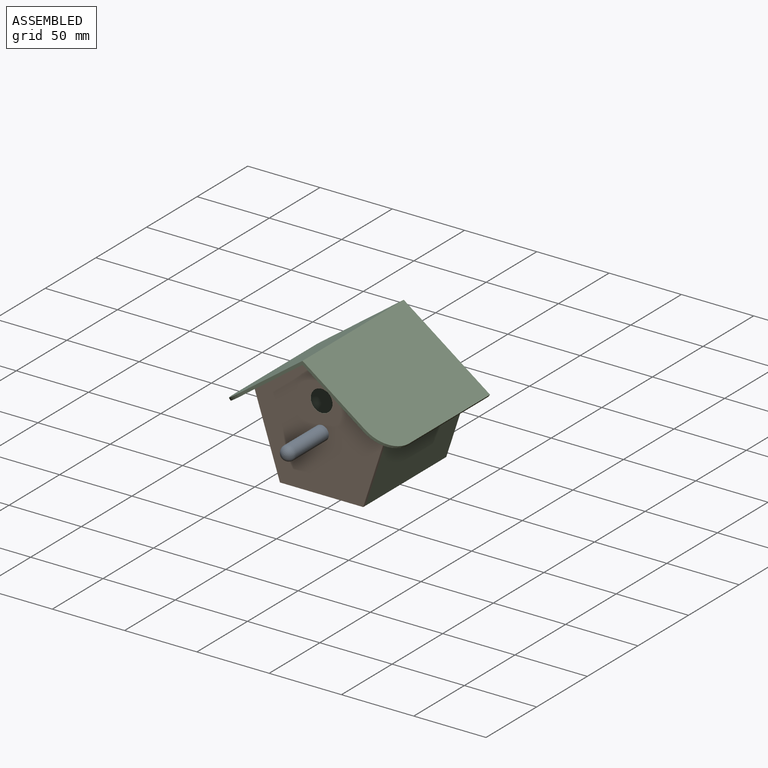
[diagram: assembled view]
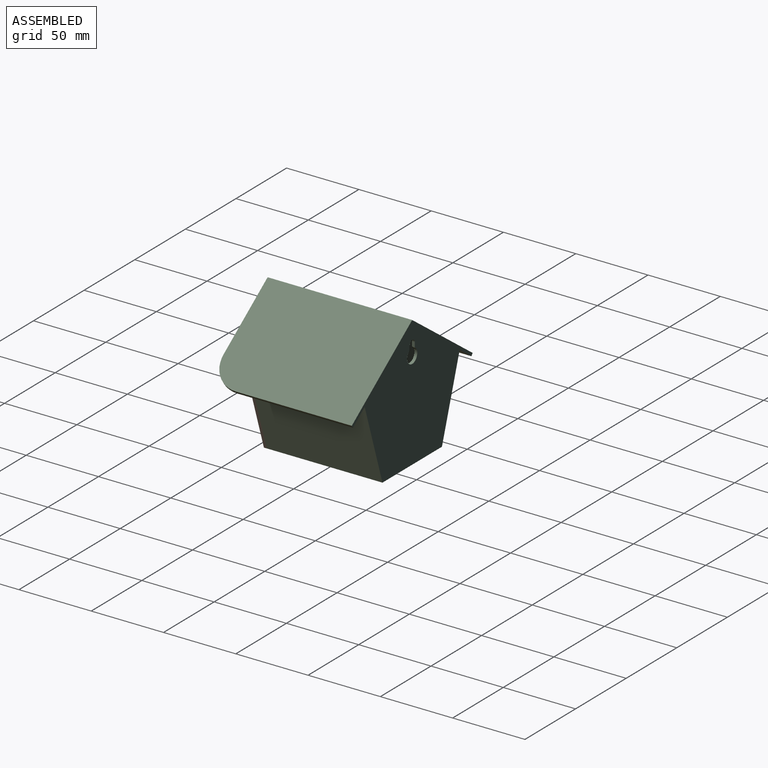
[diagram: assembled view, second angle]
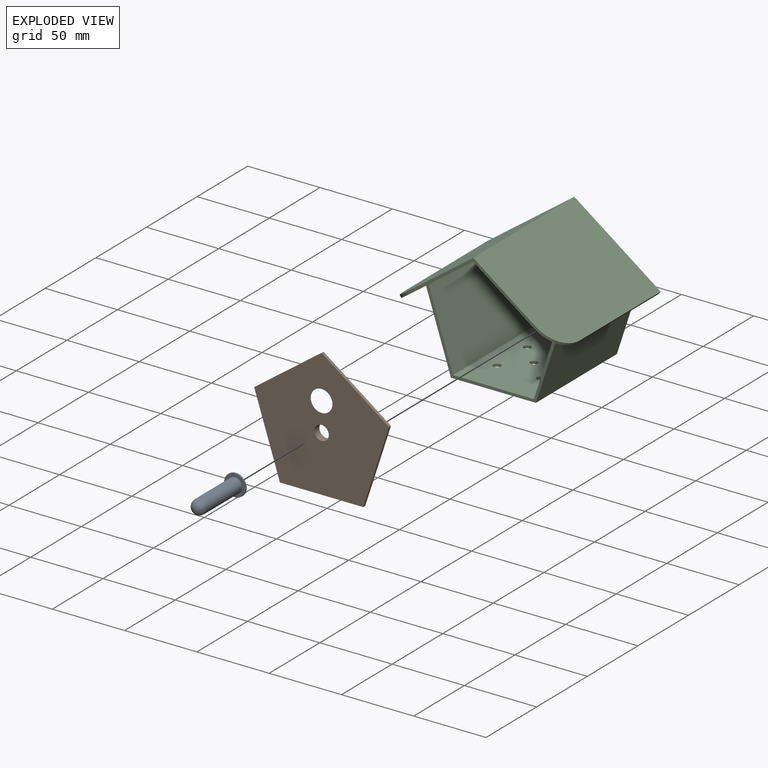
[diagram: exploded view]
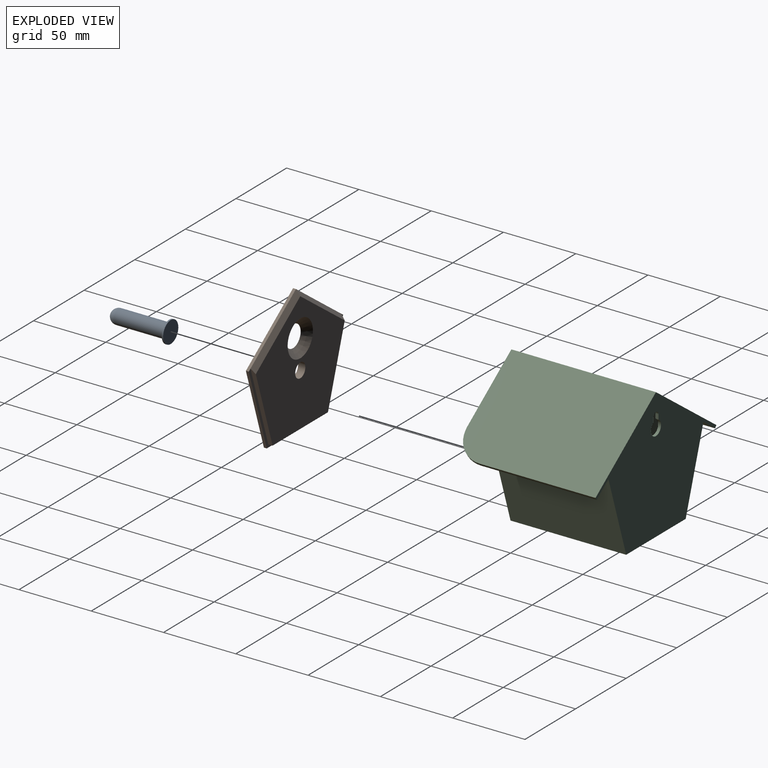
[diagram: exploded view, second angle]
ASSEMBLY  parts=3 mates=2
PART A: 5 faces, bbox 15x15x41 mm
  f0: cylinder r=7.5mm len=15mm, axis (0,0,-1), area 47.1mm2, adj f1,f2
  f1: plane 15x15mm, normal (0,0,1), area 98.2mm2, adj f0,f3
  f2: plane 15x15mm, normal (0,0,-1), area 176.7mm2, adj f0
  f3: cylinder r=5mm len=35mm, axis (0,0,-1), area 1099.6mm2, adj f1,f4
  f4: sphere r=5mm, area 157.1mm2, adj f3
PART B: 15 faces, bbox 93.2x88.6x5 mm
  f0: plane 46.6x33.86mm, normal (-0.59,0.81,0), area 115.2mm2, adj f1,f2,f7,f8,f12
  f1: plane 46.6x33.86mm, normal (0.59,0.81,0), area 115.2mm2, adj f0,f4,f7,f8,f13
  f2: plane 54.78x17.8mm, normal (-0.95,-0.31,0), area 115.2mm2, adj f0,f3,f7,f8
  f3: plane 57.6x2mm, normal (0,-1,0), area 115.2mm2, adj f2,f4,f7,f8
  f4: plane 54.78x17.8mm, normal (0.95,-0.31,0), area 115.2mm2, adj f1,f3,f7,f8
  f5: cylinder r=5mm len=10mm, axis (0,0,-1), area 157.1mm2, adj f6,f7
  f6: plane 87.85x82.93mm, normal (0,0,1), area 4468.8mm2, adj f5,f9,f10,f11,f12,f13,f14
  f7: plane 93.2x88.64mm, normal (0,0,-1), area 5453.5mm2, adj f0,f1,f2,f3,f4,f5,f14
  f8: plane 93.2x56.02mm, normal (0,0,1), area 341.1mm2, adj f0,f1,f2,f3,f4,f9,f10,f11
  f9: plane 54.02x17.55mm, normal (-0.95,-0.31,0), area 165.7mm2, adj f6,f8,f10,f12
  f10: plane 54.7x3mm, normal (0,-1,0), area 164.1mm2, adj f6,f8,f9,f11
  f11: plane 54.02x17.55mm, normal (0.95,-0.31,0), area 165.7mm2, adj f6,f8,f10,f13
  f12: plane 44.9x35.62mm, normal (-0.42,0.57,0.71), area 232.9mm2, adj f0,f6,f9,f13
  f13: plane 44.9x35.62mm, normal (0.42,0.57,0.71), area 232.9mm2, adj f1,f6,f11,f12
  f14: cone r=7.5mm half-angle=45deg, axis (0,0,1), area 444.3mm2, adj f6,f7
PART C: 27 faces, bbox 119.4x100x90.5 mm
  f0: plane 93.81x55.14mm, normal (0,-1,0), area 339.7mm2, adj f1,f4,f5,f7,f8,f9,f10,f11
  f1: plane 80x53.9mm, normal (0.95,0,-0.31), area 4534mm2, adj f0,f5,f6,f7
  f2: plane 100x59.69mm, normal (0.59,0,0.81), area 7292mm2, adj f3,f6,f18,f19,f21
  f3: plane 100x59.69mm, normal (-0.59,0,0.81), area 7292mm2, adj f2,f6,f17,f19,f20
  f4: plane 80x53.9mm, normal (-0.95,0,-0.31), area 4534mm2, adj f0,f5,f6,f8
  f5: plane 80x58.78mm, normal (0,0,-1), area 4604.1mm2, adj f0,f1,f4,f6,f22,f23,f24,f25
  f6: plane 119.38x90.45mm, normal (0,1,0), area 5900.9mm2, adj f1,f2,f3,f4,f5,f7,f8,f13
  f7: plane 100x58.51mm, normal (-0.59,0,-0.81), area 6866.7mm2, adj f0,f1,f6,f8,f11,f12,f18,f19
  f8: plane 100x58.51mm, normal (0.59,0,-0.81), area 6866.7mm2, adj f0,f4,f6,f7,f9,f12,f17,f19
  f9: plane 78x53.14mm, normal (0.95,0,0.31), area 4358mm2, adj f0,f8,f10,f12
  f10: plane 78x55.87mm, normal (0,0,1), area 4259.9mm2, adj f0,f9,f11,f12,f22,f23,f24,f25
  f11: plane 78x53.14mm, normal (-0.95,0,0.31), area 4358mm2, adj f0,f7,f10,f12
  f12: plane 90.4x85.98mm, normal (0,-1,0), area 5268.9mm2, adj f7,f8,f9,f10,f11,f13,f14,f15
  f13: plane 3.17x2mm, normal (1,0,0), area 6.3mm2, adj f6,f12,f14,f16
  f14: cylinder r=5mm len=10mm, axis (0,-1,0), area 52.4mm2, adj f6,f12,f13,f15
  f15: plane 3.17x2mm, normal (-1,0,0), area 6.3mm2, adj f6,f12,f14,f16
  f16: cylinder r=2.5mm len=5mm, axis (0,-1,0), area 15.7mm2, adj f6,f12,f13,f15
  f17: plane 80x1.62mm, normal (-0.81,0,-0.59), area 160mm2, adj f3,f6,f8,f20
  f18: plane 80x1.62mm, normal (0.81,0,-0.59), area 160mm2, adj f2,f6,f7,f21
  f19: plane 87.02x33.23mm, normal (0,-1,0), area 212.2mm2, adj f2,f3,f7,f8,f20,f21
  f20: cylinder r=20mm len=20mm, axis (0.59,0,-0.81), area 62.8mm2, adj f3,f8,f17,f19
  f21: cylinder r=20mm len=20mm, axis (0.59,0,0.81), area 62.8mm2, adj f2,f7,f18,f19
  f22: cylinder r=2.5mm len=5mm, axis (0,0,-1), area 31.4mm2, adj f5,f10
  f23: cylinder r=2.5mm len=5mm, axis (0,0,-1), area 31.4mm2, adj f5,f10
  f24: cylinder r=2.5mm len=5mm, axis (0,0,-1), area 31.4mm2, adj f5,f10
  f25: cylinder r=2.5mm len=5mm, axis (0,0,-1), area 31.4mm2, adj f5,f10
  f26: cylinder r=2.5mm len=5mm, axis (0,0,-1), area 31.4mm2, adj f5,f10
PLACE A rot(axis=(1,0,0),90deg) t=(-9.39,-38.5,-0.19)mm
PLACE B rot(axis=(0,0.71,0.71),180deg) t=(-9.39,-42,0.81)mm
PLACE C t=(-9.98,0,1.62)mm
MATE slider B.f8 <-> C.f0  axis (0,1,0) through (19.41,-40,-38.83)mm
MATE fastened A.f3 <-> B.f5  axis (0,1,0) through (-9.39,-39.5,-0.19)mm
